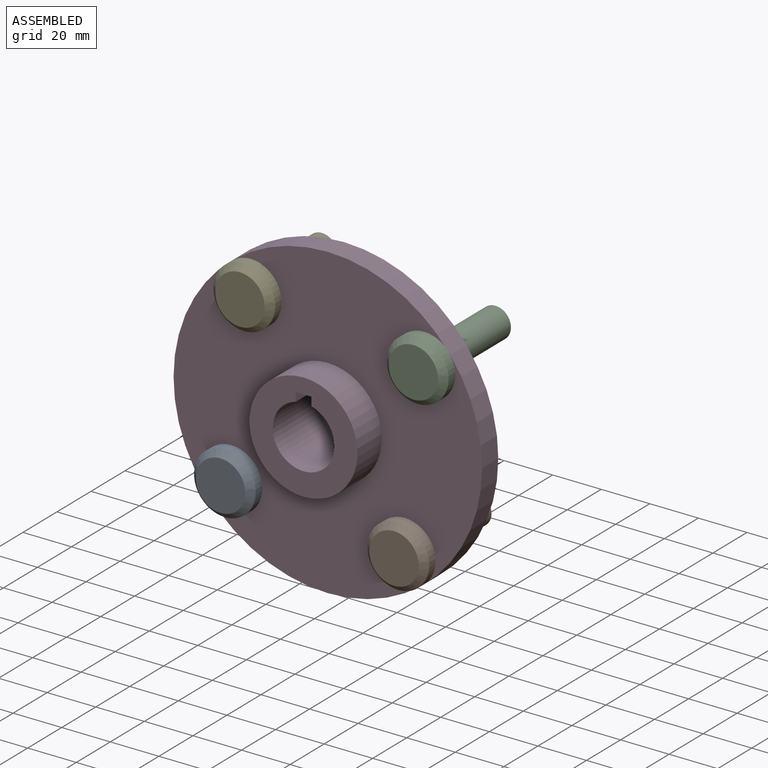
[diagram: assembled view]
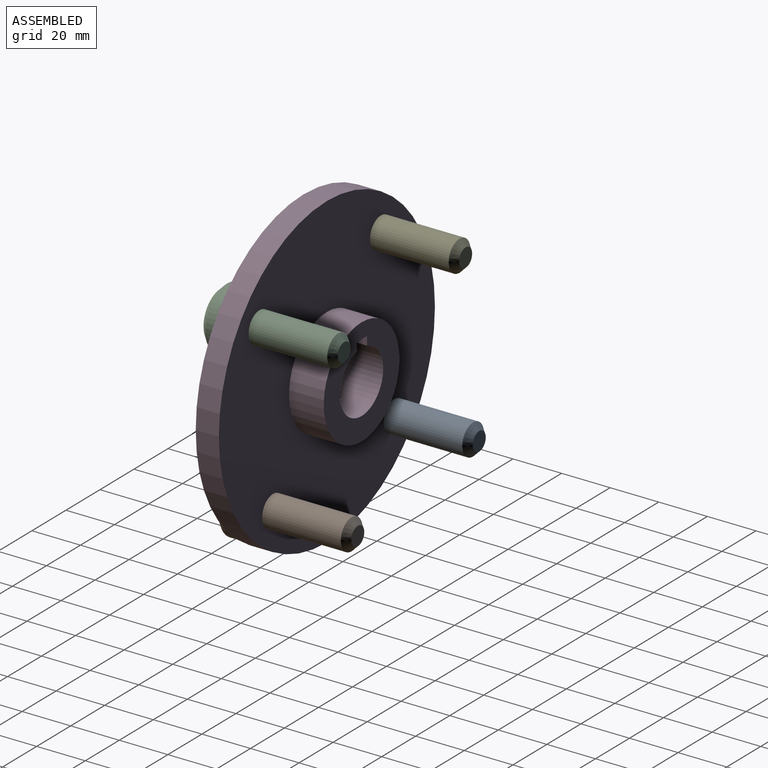
[diagram: assembled view, second angle]
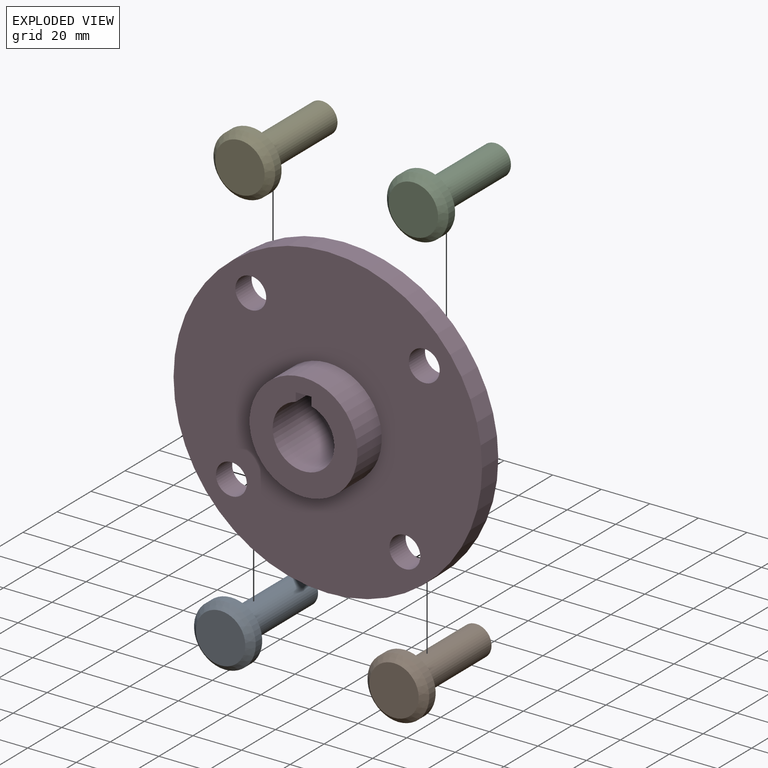
[diagram: exploded view]
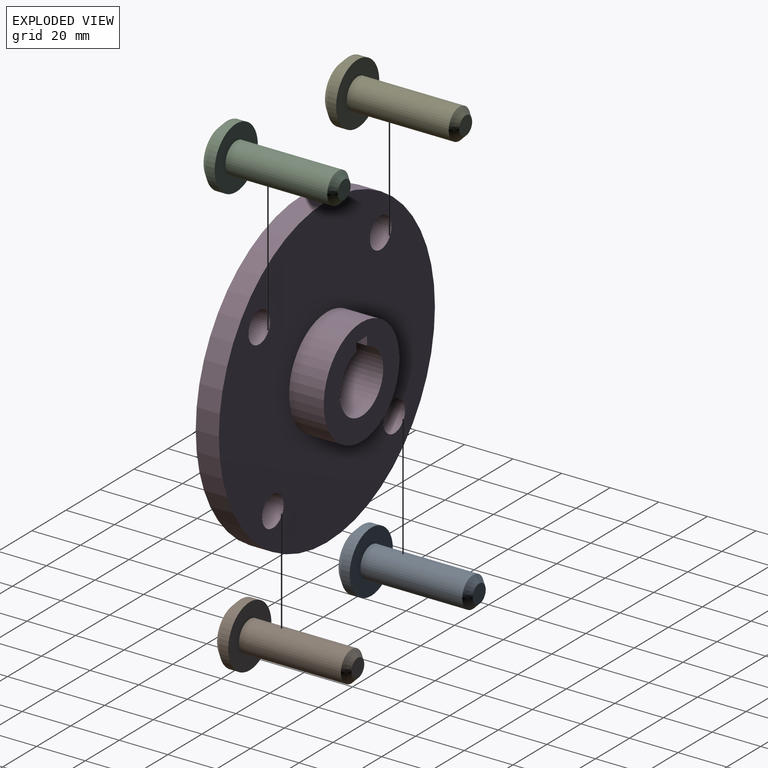
[diagram: exploded view, second angle]
ASSEMBLY  parts=5 mates=4
PART A: 7 faces, bbox 25.4x50.8x25.4 mm
  f0: cylinder r=6.35mm len=41.91mm, axis (0,-1,0), area 1672.1mm2, adj f4,f5
  f1: plane 7.62x7.62mm, normal (0,1,0), area 45.6mm2, adj f5
  f2: cylinder r=12.7mm len=25.4mm, axis (0,1,0), area 304mm2, adj f4,f6
  f3: plane 20.32x20.32mm, normal (0,-1,0), area 324.3mm2, adj f6
  f4: plane 25.4x25.4mm, normal (0,1,0), area 380mm2, adj f0,f2
  f5: cone r=6.35mm half-angle=45deg, axis (0,-1,0), area 114.7mm2, adj f0,f1
  f6: cone r=10.16mm half-angle=45deg, axis (0,1,0), area 258mm2, adj f2,f3
PART B: same geometry as A
PART C: same geometry as A
PART D: 15 faces, bbox 127x38.1x127 mm
  f0: cylinder r=22.23mm len=44.45mm, axis (0,1,0), area 1995.2mm2, adj f7,f14
  f1: cylinder r=12.7mm len=38.1mm, axis (0,1,0), area 2795.7mm2, adj f2,f4,f6,f7
  f2: plane 38.1x3.58mm, normal (1,0,0), area 136.3mm2, adj f1,f3,f6,f7
  f3: plane 38.1x6.35mm, normal (0,0,-1), area 241.9mm2, adj f2,f4,f6,f7
  f4: plane 38.1x3.58mm, normal (-1,0,0), area 136.3mm2, adj f1,f3,f6,f7
  f5: cylinder r=22.23mm len=44.45mm, axis (0,1,0), area 1995.2mm2, adj f6,f13
  f6: plane 44.45x44.45mm, normal (0,-1,0), area 1024.1mm2, adj f1,f2,f3,f4,f5
  f7: plane 44.45x44.45mm, normal (0,1,0), area 1024.1mm2, adj f0,f1,f2,f3,f4
  f8: cylinder r=6.35mm len=12.7mm, axis (0,1,0), area 380mm2, adj f13,f14
  f9: cylinder r=6.35mm len=12.7mm, axis (0,1,0), area 380mm2, adj f13,f14
  f10: cylinder r=6.35mm len=12.7mm, axis (0,1,0), area 380mm2, adj f13,f14
  f11: cylinder r=6.35mm len=12.7mm, axis (0,1,0), area 380mm2, adj f13,f14
  f12: cylinder r=63.5mm len=127mm, axis (0,1,0), area 3800.3mm2, adj f13,f14
  f13: plane 127x127mm, normal (0,-1,0), area 10609.2mm2, adj f5,f8,f9,f10,f11,f12
  f14: plane 127x127mm, normal (0,1,0), area 10609.2mm2, adj f0,f8,f9,f10,f11,f12
PART E: same geometry as A
PLACE A t=(18.63,-52.48,-51.48)mm
PLACE B t=(90.03,-52.48,-59.47)mm
PLACE C t=(98.02,-52.48,11.92)mm
PLACE D t=(-37.74,-47.72,19.63)mm
PLACE E t=(26.62,-52.48,19.91)mm
MATE fastened B.f0 <-> D.f9  axis (0,1,0) through (-6.03,-52.48,-20.06)mm
MATE fastened A.f0 <-> D.f8  axis (0,1,0) through (-77.43,-52.48,-12.07)mm
MATE fastened E.f0 <-> D.f11  axis (0,1,0) through (-69.44,-52.48,59.33)mm
MATE fastened C.f0 <-> D.f10  axis (0,1,0) through (1.96,-52.48,51.34)mm
